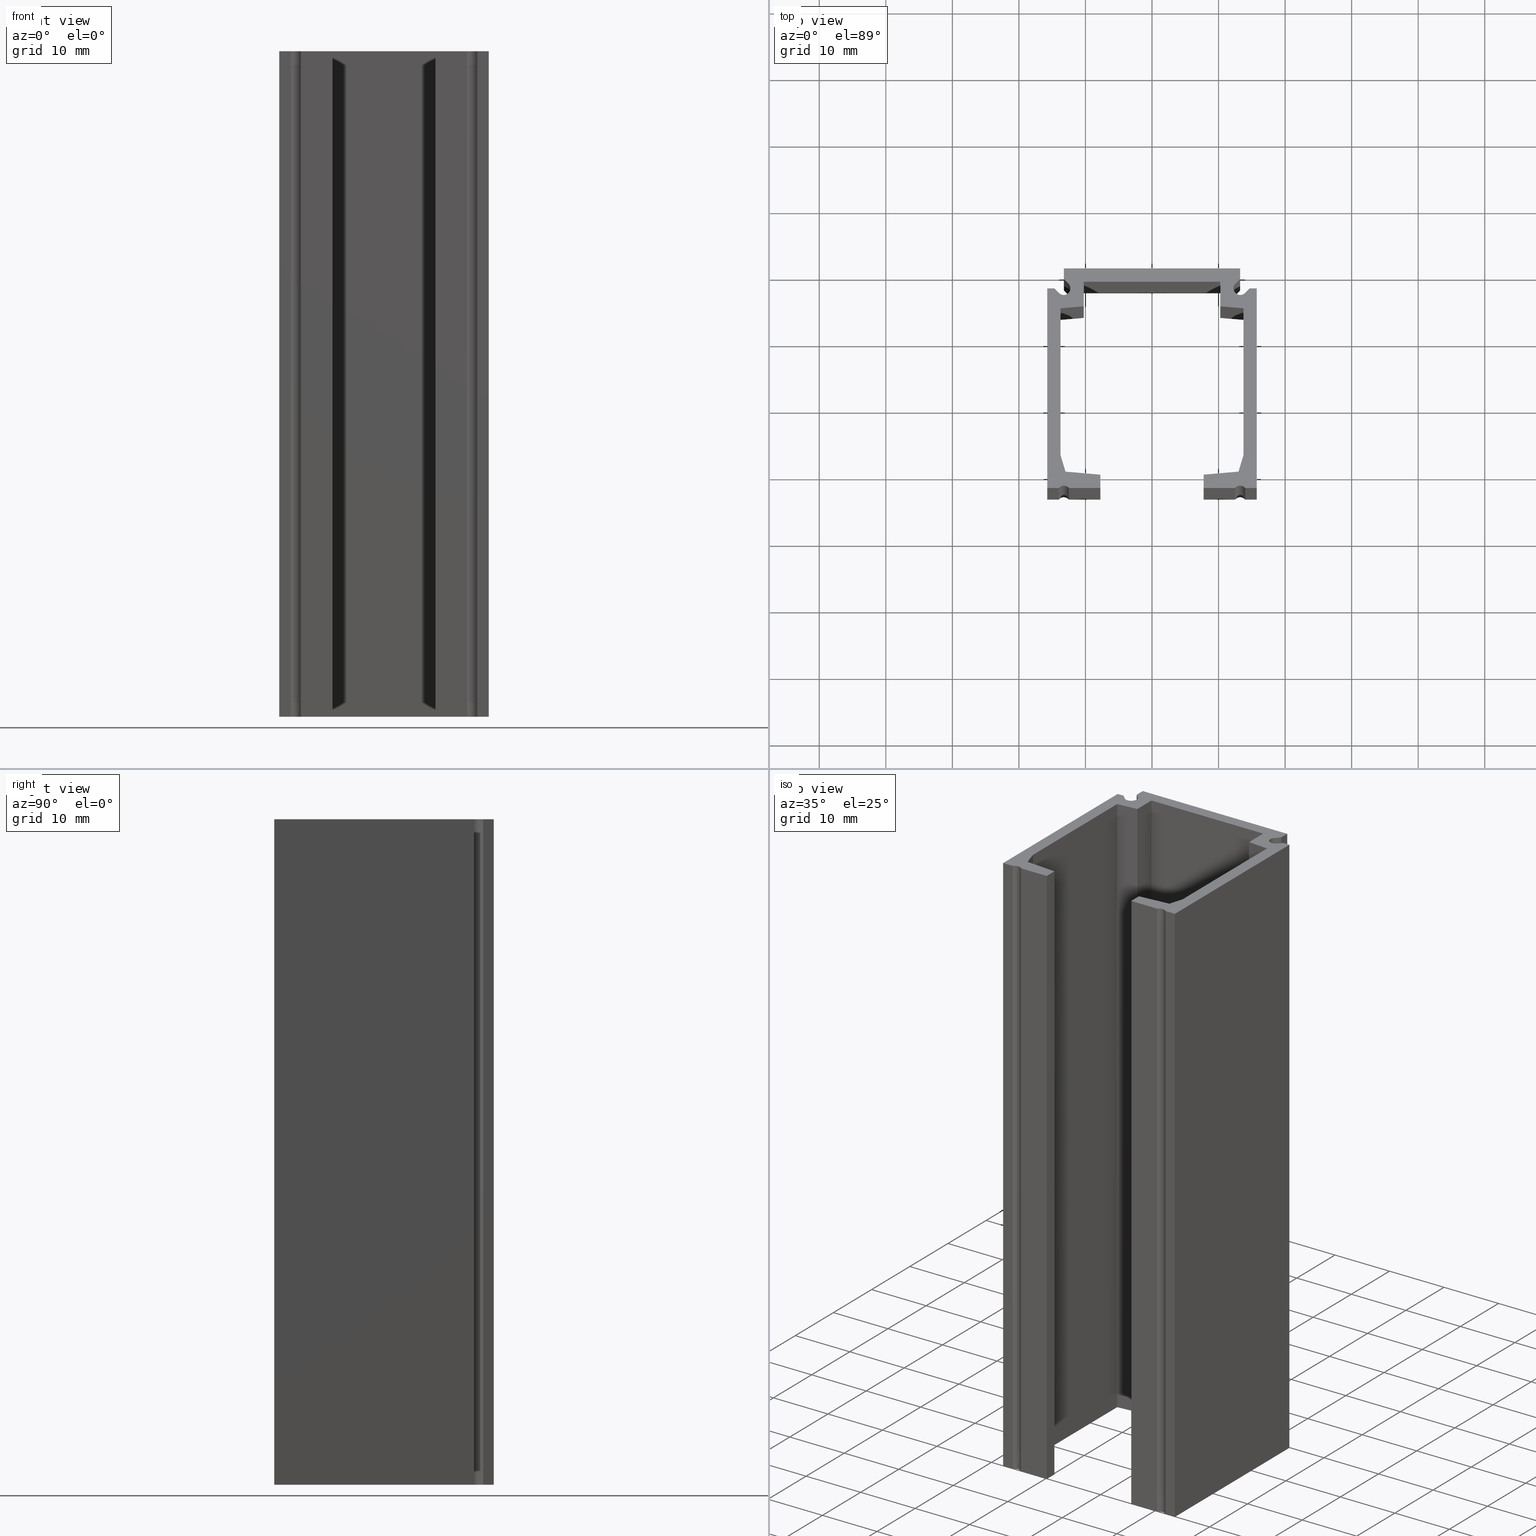
[diagram: canonical four-view strip — front | top / right | iso, engineering-drawing reading convention]
A machine part, canonical four-view strip (front | top / right | iso — engineering-drawing reading convention). The complete STEP part file that produces these views, byte-faithful:
ISO-10303-21;
HEADER;
/* Generated by software containing ST-Developer
 * from STEP Tools, Inc. (www.steptools.com) 
 */

FILE_DESCRIPTION(
/* description */ ('PROFILO X PROTEZIONI '),
/* implementation_level */ '2;1');

FILE_NAME(
/* name */ 'C:\\Users\\Tecnico5\\Desktop\\BPRGD0000002.stp',
/* time_stamp */ '2022-08-30T16:04:37+02:00',
/* author */ ('tecnico5'),
/* organization */ (''),
/* preprocessor_version */ 'ST-DEVELOPER v18.1',
/* originating_system */ 'Autodesk Inventor 2022',
/* authorisation */ '');

FILE_SCHEMA (('AUTOMOTIVE_DESIGN { 1 0 10303 214 3 1 1 }'));
ENDSEC;

DATA;
#10=MECHANICAL_DESIGN_GEOMETRIC_PRESENTATION_REPRESENTATION('',(#13),#1124);
#11=SHAPE_REPRESENTATION_RELATIONSHIP('SRR','None',#1131,#12);
#12=ADVANCED_BREP_SHAPE_REPRESENTATION('',(#14),#1123);
#13=STYLED_ITEM('',(#1140),#14);
#14=MANIFOLD_SOLID_BREP('Solido3',#687);
#15=PLANE('',#716);
#16=PLANE('',#717);
#17=PLANE('',#718);
#18=PLANE('',#721);
#19=PLANE('',#722);
#20=PLANE('',#723);
#21=PLANE('',#724);
#22=PLANE('',#725);
#23=PLANE('',#726);
#24=PLANE('',#727);
#25=PLANE('',#728);
#26=PLANE('',#729);
#27=PLANE('',#730);
#28=PLANE('',#731);
#29=PLANE('',#732);
#30=PLANE('',#733);
#31=PLANE('',#734);
#32=PLANE('',#735);
#33=PLANE('',#736);
#34=PLANE('',#737);
#35=PLANE('',#740);
#36=PLANE('',#741);
#37=PLANE('',#742);
#38=PLANE('',#743);
#39=PLANE('',#744);
#40=PLANE('',#747);
#41=PLANE('',#748);
#42=PLANE('',#749);
#43=PLANE('',#750);
#44=PLANE('',#751);
#45=FACE_OUTER_BOUND('',#79,.T.);
#46=FACE_OUTER_BOUND('',#80,.T.);
#47=FACE_OUTER_BOUND('',#81,.T.);
#48=FACE_OUTER_BOUND('',#82,.T.);
#49=FACE_OUTER_BOUND('',#83,.T.);
#50=FACE_OUTER_BOUND('',#84,.T.);
#51=FACE_OUTER_BOUND('',#85,.T.);
#52=FACE_OUTER_BOUND('',#86,.T.);
#53=FACE_OUTER_BOUND('',#87,.T.);
#54=FACE_OUTER_BOUND('',#88,.T.);
#55=FACE_OUTER_BOUND('',#89,.T.);
#56=FACE_OUTER_BOUND('',#90,.T.);
#57=FACE_OUTER_BOUND('',#91,.T.);
#58=FACE_OUTER_BOUND('',#92,.T.);
#59=FACE_OUTER_BOUND('',#93,.T.);
#60=FACE_OUTER_BOUND('',#94,.T.);
#61=FACE_OUTER_BOUND('',#95,.T.);
#62=FACE_OUTER_BOUND('',#96,.T.);
#63=FACE_OUTER_BOUND('',#97,.T.);
#64=FACE_OUTER_BOUND('',#98,.T.);
#65=FACE_OUTER_BOUND('',#99,.T.);
#66=FACE_OUTER_BOUND('',#100,.T.);
#67=FACE_OUTER_BOUND('',#101,.T.);
#68=FACE_OUTER_BOUND('',#102,.T.);
#69=FACE_OUTER_BOUND('',#103,.T.);
#70=FACE_OUTER_BOUND('',#104,.T.);
#71=FACE_OUTER_BOUND('',#105,.T.);
#72=FACE_OUTER_BOUND('',#106,.T.);
#73=FACE_OUTER_BOUND('',#107,.T.);
#74=FACE_OUTER_BOUND('',#108,.T.);
#75=FACE_OUTER_BOUND('',#109,.T.);
#76=FACE_OUTER_BOUND('',#110,.T.);
#77=FACE_OUTER_BOUND('',#111,.T.);
#78=FACE_OUTER_BOUND('',#112,.T.);
#79=EDGE_LOOP('',(#457,#458,#459,#460));
#80=EDGE_LOOP('',(#461,#462,#463,#464));
#81=EDGE_LOOP('',(#465,#466,#467,#468));
#82=EDGE_LOOP('',(#469,#470,#471,#472));
#83=EDGE_LOOP('',(#473,#474,#475,#476,#477,#478,#479,#480,#481,#482,#483,
#484,#485,#486,#487,#488,#489,#490,#491,#492,#493,#494,#495,#496,#497,#498,
#499,#500,#501,#502,#503,#504));
#84=EDGE_LOOP('',(#505,#506,#507,#508));
#85=EDGE_LOOP('',(#509,#510,#511,#512));
#86=EDGE_LOOP('',(#513,#514,#515,#516));
#87=EDGE_LOOP('',(#517,#518,#519,#520));
#88=EDGE_LOOP('',(#521,#522,#523,#524));
#89=EDGE_LOOP('',(#525,#526,#527,#528));
#90=EDGE_LOOP('',(#529,#530,#531,#532));
#91=EDGE_LOOP('',(#533,#534,#535,#536));
#92=EDGE_LOOP('',(#537,#538,#539,#540));
#93=EDGE_LOOP('',(#541,#542,#543,#544));
#94=EDGE_LOOP('',(#545,#546,#547,#548));
#95=EDGE_LOOP('',(#549,#550,#551,#552));
#96=EDGE_LOOP('',(#553,#554,#555,#556));
#97=EDGE_LOOP('',(#557,#558,#559,#560));
#98=EDGE_LOOP('',(#561,#562,#563,#564));
#99=EDGE_LOOP('',(#565,#566,#567,#568));
#100=EDGE_LOOP('',(#569,#570,#571,#572));
#101=EDGE_LOOP('',(#573,#574,#575,#576));
#102=EDGE_LOOP('',(#577,#578,#579,#580));
#103=EDGE_LOOP('',(#581,#582,#583,#584));
#104=EDGE_LOOP('',(#585,#586,#587,#588));
#105=EDGE_LOOP('',(#589,#590,#591,#592));
#106=EDGE_LOOP('',(#593,#594,#595,#596));
#107=EDGE_LOOP('',(#597,#598,#599,#600));
#108=EDGE_LOOP('',(#601,#602,#603,#604));
#109=EDGE_LOOP('',(#605,#606,#607,#608));
#110=EDGE_LOOP('',(#609,#610,#611,#612));
#111=EDGE_LOOP('',(#613,#614,#615,#616));
#112=EDGE_LOOP('',(#617,#618,#619,#620,#621,#622,#623,#624,#625,#626,#627,
#628,#629,#630,#631,#632,#633,#634,#635,#636,#637,#638,#639,#640,#641,#642,
#643,#644,#645,#646,#647,#648));
#113=LINE('',#932,#201);
#114=LINE('',#935,#202);
#115=LINE('',#941,#203);
#116=LINE('',#944,#204);
#117=LINE('',#947,#205);
#118=LINE('',#949,#206);
#119=LINE('',#950,#207);
#120=LINE('',#953,#208);
#121=LINE('',#955,#209);
#122=LINE('',#956,#210);
#123=LINE('',#959,#211);
#124=LINE('',#961,#212);
#125=LINE('',#963,#213);
#126=LINE('',#965,#214);
#127=LINE('',#967,#215);
#128=LINE('',#969,#216);
#129=LINE('',#971,#217);
#130=LINE('',#973,#218);
#131=LINE('',#975,#219);
#132=LINE('',#977,#220);
#133=LINE('',#979,#221);
#134=LINE('',#981,#222);
#135=LINE('',#983,#223);
#136=LINE('',#984,#224);
#137=LINE('',#986,#225);
#138=LINE('',#988,#226);
#139=LINE('',#990,#227);
#140=LINE('',#992,#228);
#141=LINE('',#996,#229);
#142=LINE('',#998,#230);
#143=LINE('',#1000,#231);
#144=LINE('',#1002,#232);
#145=LINE('',#1004,#233);
#146=LINE('',#1008,#234);
#147=LINE('',#1010,#235);
#148=LINE('',#1011,#236);
#149=LINE('',#1014,#237);
#150=LINE('',#1015,#238);
#151=LINE('',#1018,#239);
#152=LINE('',#1019,#240);
#153=LINE('',#1023,#241);
#154=LINE('',#1024,#242);
#155=LINE('',#1025,#243);
#156=LINE('',#1028,#244);
#157=LINE('',#1029,#245);
#158=LINE('',#1032,#246);
#159=LINE('',#1033,#247);
#160=LINE('',#1036,#248);
#161=LINE('',#1037,#249);
#162=LINE('',#1040,#250);
#163=LINE('',#1041,#251);
#164=LINE('',#1044,#252);
#165=LINE('',#1045,#253);
#166=LINE('',#1048,#254);
#167=LINE('',#1049,#255);
#168=LINE('',#1052,#256);
#169=LINE('',#1053,#257);
#170=LINE('',#1056,#258);
#171=LINE('',#1057,#259);
#172=LINE('',#1060,#260);
#173=LINE('',#1061,#261);
#174=LINE('',#1064,#262);
#175=LINE('',#1065,#263);
#176=LINE('',#1067,#264);
#177=LINE('',#1070,#265);
#178=LINE('',#1071,#266);
#179=LINE('',#1074,#267);
#180=LINE('',#1075,#268);
#181=LINE('',#1078,#269);
#182=LINE('',#1079,#270);
#183=LINE('',#1083,#271);
#184=LINE('',#1086,#272);
#185=LINE('',#1087,#273);
#186=LINE('',#1090,#274);
#187=LINE('',#1091,#275);
#188=LINE('',#1094,#276);
#189=LINE('',#1095,#277);
#190=LINE('',#1098,#278);
#191=LINE('',#1099,#279);
#192=LINE('',#1102,#280);
#193=LINE('',#1103,#281);
#194=LINE('',#1107,#282);
#195=LINE('',#1110,#283);
#196=LINE('',#1111,#284);
#197=LINE('',#1114,#285);
#198=LINE('',#1115,#286);
#199=LINE('',#1117,#287);
#200=LINE('',#1119,#288);
#201=VECTOR('',#758,10.);
#202=VECTOR('',#761,10.);
#203=VECTOR('',#766,10.);
#204=VECTOR('',#769,10.);
#205=VECTOR('',#772,10.);
#206=VECTOR('',#773,10.);
#207=VECTOR('',#774,10.);
#208=VECTOR('',#777,10.);
#209=VECTOR('',#778,10.);
#210=VECTOR('',#779,10.);
#211=VECTOR('',#782,10.);
#212=VECTOR('',#783,10.);
#213=VECTOR('',#784,10.);
#214=VECTOR('',#785,10.);
#215=VECTOR('',#786,10.);
#216=VECTOR('',#787,10.);
#217=VECTOR('',#788,10.);
#218=VECTOR('',#789,10.);
#219=VECTOR('',#790,10.);
#220=VECTOR('',#791,10.);
#221=VECTOR('',#792,10.);
#222=VECTOR('',#793,10.);
#223=VECTOR('',#794,10.);
#224=VECTOR('',#795,10.);
#225=VECTOR('',#796,10.);
#226=VECTOR('',#797,10.);
#227=VECTOR('',#798,10.);
#228=VECTOR('',#799,10.);
#229=VECTOR('',#802,10.);
#230=VECTOR('',#803,10.);
#231=VECTOR('',#804,10.);
#232=VECTOR('',#805,10.);
#233=VECTOR('',#806,10.);
#234=VECTOR('',#809,10.);
#235=VECTOR('',#810,10.);
#236=VECTOR('',#811,10.);
#237=VECTOR('',#814,10.);
#238=VECTOR('',#815,10.);
#239=VECTOR('',#818,10.);
#240=VECTOR('',#819,10.);
#241=VECTOR('',#822,10.);
#242=VECTOR('',#823,10.);
#243=VECTOR('',#824,10.);
#244=VECTOR('',#827,10.);
#245=VECTOR('',#828,10.);
#246=VECTOR('',#831,10.);
#247=VECTOR('',#832,10.);
#248=VECTOR('',#835,10.);
#249=VECTOR('',#836,10.);
#250=VECTOR('',#839,10.);
#251=VECTOR('',#840,10.);
#252=VECTOR('',#843,10.);
#253=VECTOR('',#844,10.);
#254=VECTOR('',#847,10.);
#255=VECTOR('',#848,10.);
#256=VECTOR('',#851,10.);
#257=VECTOR('',#852,10.);
#258=VECTOR('',#855,10.);
#259=VECTOR('',#856,10.);
#260=VECTOR('',#859,10.);
#261=VECTOR('',#860,10.);
#262=VECTOR('',#863,10.);
#263=VECTOR('',#864,10.);
#264=VECTOR('',#867,10.);
#265=VECTOR('',#870,10.);
#266=VECTOR('',#871,10.);
#267=VECTOR('',#874,10.);
#268=VECTOR('',#875,10.);
#269=VECTOR('',#878,10.);
#270=VECTOR('',#879,10.);
#271=VECTOR('',#884,10.);
#272=VECTOR('',#887,10.);
#273=VECTOR('',#888,10.);
#274=VECTOR('',#891,10.);
#275=VECTOR('',#892,10.);
#276=VECTOR('',#895,10.);
#277=VECTOR('',#896,10.);
#278=VECTOR('',#899,10.);
#279=VECTOR('',#900,10.);
#280=VECTOR('',#903,10.);
#281=VECTOR('',#904,10.);
#282=VECTOR('',#909,10.);
#283=VECTOR('',#912,10.);
#284=VECTOR('',#913,10.);
#285=VECTOR('',#916,10.);
#286=VECTOR('',#917,10.);
#287=VECTOR('',#920,10.);
#288=VECTOR('',#923,10.);
#289=CIRCLE('',#711,1.);
#290=CIRCLE('',#712,1.);
#291=CIRCLE('',#714,1.);
#292=CIRCLE('',#715,1.);
#293=CIRCLE('',#719,0.999999999999847);
#294=CIRCLE('',#720,0.999999999999847);
#295=CIRCLE('',#739,0.999999999999847);
#296=CIRCLE('',#746,0.999999999999847);
#297=VERTEX_POINT('',#928);
#298=VERTEX_POINT('',#929);
#299=VERTEX_POINT('',#931);
#300=VERTEX_POINT('',#933);
#301=VERTEX_POINT('',#937);
#302=VERTEX_POINT('',#938);
#303=VERTEX_POINT('',#940);
#304=VERTEX_POINT('',#942);
#305=VERTEX_POINT('',#946);
#306=VERTEX_POINT('',#948);
#307=VERTEX_POINT('',#952);
#308=VERTEX_POINT('',#954);
#309=VERTEX_POINT('',#958);
#310=VERTEX_POINT('',#960);
#311=VERTEX_POINT('',#962);
#312=VERTEX_POINT('',#964);
#313=VERTEX_POINT('',#966);
#314=VERTEX_POINT('',#968);
#315=VERTEX_POINT('',#970);
#316=VERTEX_POINT('',#972);
#317=VERTEX_POINT('',#974);
#318=VERTEX_POINT('',#976);
#319=VERTEX_POINT('',#978);
#320=VERTEX_POINT('',#980);
#321=VERTEX_POINT('',#982);
#322=VERTEX_POINT('',#985);
#323=VERTEX_POINT('',#987);
#324=VERTEX_POINT('',#989);
#325=VERTEX_POINT('',#991);
#326=VERTEX_POINT('',#993);
#327=VERTEX_POINT('',#995);
#328=VERTEX_POINT('',#997);
#329=VERTEX_POINT('',#999);
#330=VERTEX_POINT('',#1001);
#331=VERTEX_POINT('',#1003);
#332=VERTEX_POINT('',#1005);
#333=VERTEX_POINT('',#1007);
#334=VERTEX_POINT('',#1009);
#335=VERTEX_POINT('',#1013);
#336=VERTEX_POINT('',#1017);
#337=VERTEX_POINT('',#1021);
#338=VERTEX_POINT('',#1022);
#339=VERTEX_POINT('',#1027);
#340=VERTEX_POINT('',#1031);
#341=VERTEX_POINT('',#1035);
#342=VERTEX_POINT('',#1039);
#343=VERTEX_POINT('',#1043);
#344=VERTEX_POINT('',#1047);
#345=VERTEX_POINT('',#1051);
#346=VERTEX_POINT('',#1055);
#347=VERTEX_POINT('',#1059);
#348=VERTEX_POINT('',#1063);
#349=VERTEX_POINT('',#1069);
#350=VERTEX_POINT('',#1073);
#351=VERTEX_POINT('',#1077);
#352=VERTEX_POINT('',#1081);
#353=VERTEX_POINT('',#1085);
#354=VERTEX_POINT('',#1089);
#355=VERTEX_POINT('',#1093);
#356=VERTEX_POINT('',#1097);
#357=VERTEX_POINT('',#1101);
#358=VERTEX_POINT('',#1105);
#359=VERTEX_POINT('',#1109);
#360=VERTEX_POINT('',#1113);
#361=EDGE_CURVE('',#297,#298,#289,.T.);
#362=EDGE_CURVE('',#299,#297,#113,.T.);
#363=EDGE_CURVE('',#300,#299,#290,.T.);
#364=EDGE_CURVE('',#298,#300,#114,.T.);
#365=EDGE_CURVE('',#301,#302,#291,.T.);
#366=EDGE_CURVE('',#303,#301,#115,.T.);
#367=EDGE_CURVE('',#304,#303,#292,.T.);
#368=EDGE_CURVE('',#302,#304,#116,.T.);
#369=EDGE_CURVE('',#300,#305,#117,.T.);
#370=EDGE_CURVE('',#306,#305,#118,.T.);
#371=EDGE_CURVE('',#298,#306,#119,.T.);
#372=EDGE_CURVE('',#307,#297,#120,.T.);
#373=EDGE_CURVE('',#307,#308,#121,.T.);
#374=EDGE_CURVE('',#308,#299,#122,.T.);
#375=EDGE_CURVE('',#306,#309,#123,.T.);
#376=EDGE_CURVE('',#309,#310,#124,.T.);
#377=EDGE_CURVE('',#310,#311,#125,.T.);
#378=EDGE_CURVE('',#311,#312,#126,.T.);
#379=EDGE_CURVE('',#312,#313,#127,.T.);
#380=EDGE_CURVE('',#313,#314,#128,.T.);
#381=EDGE_CURVE('',#314,#315,#129,.T.);
#382=EDGE_CURVE('',#315,#316,#130,.T.);
#383=EDGE_CURVE('',#316,#317,#131,.T.);
#384=EDGE_CURVE('',#317,#318,#132,.T.);
#385=EDGE_CURVE('',#318,#319,#133,.T.);
#386=EDGE_CURVE('',#319,#320,#134,.T.);
#387=EDGE_CURVE('',#320,#321,#135,.T.);
#388=EDGE_CURVE('',#321,#301,#136,.T.);
#389=EDGE_CURVE('',#302,#322,#137,.T.);
#390=EDGE_CURVE('',#322,#323,#138,.T.);
#391=EDGE_CURVE('',#323,#324,#139,.T.);
#392=EDGE_CURVE('',#324,#325,#140,.T.);
#393=EDGE_CURVE('',#325,#326,#293,.T.);
#394=EDGE_CURVE('',#326,#327,#141,.T.);
#395=EDGE_CURVE('',#327,#328,#142,.T.);
#396=EDGE_CURVE('',#328,#329,#143,.T.);
#397=EDGE_CURVE('',#329,#330,#144,.T.);
#398=EDGE_CURVE('',#330,#331,#145,.T.);
#399=EDGE_CURVE('',#331,#332,#294,.T.);
#400=EDGE_CURVE('',#332,#333,#146,.T.);
#401=EDGE_CURVE('',#333,#334,#147,.T.);
#402=EDGE_CURVE('',#334,#307,#148,.T.);
#403=EDGE_CURVE('',#304,#335,#149,.T.);
#404=EDGE_CURVE('',#322,#335,#150,.T.);
#405=EDGE_CURVE('',#321,#336,#151,.T.);
#406=EDGE_CURVE('',#336,#303,#152,.T.);
#407=EDGE_CURVE('',#337,#338,#153,.T.);
#408=EDGE_CURVE('',#310,#338,#154,.T.);
#409=EDGE_CURVE('',#309,#337,#155,.T.);
#410=EDGE_CURVE('',#338,#339,#156,.T.);
#411=EDGE_CURVE('',#311,#339,#157,.T.);
#412=EDGE_CURVE('',#339,#340,#158,.T.);
#413=EDGE_CURVE('',#312,#340,#159,.T.);
#414=EDGE_CURVE('',#340,#341,#160,.T.);
#415=EDGE_CURVE('',#313,#341,#161,.T.);
#416=EDGE_CURVE('',#341,#342,#162,.T.);
#417=EDGE_CURVE('',#314,#342,#163,.T.);
#418=EDGE_CURVE('',#342,#343,#164,.T.);
#419=EDGE_CURVE('',#315,#343,#165,.T.);
#420=EDGE_CURVE('',#343,#344,#166,.T.);
#421=EDGE_CURVE('',#316,#344,#167,.T.);
#422=EDGE_CURVE('',#344,#345,#168,.T.);
#423=EDGE_CURVE('',#317,#345,#169,.T.);
#424=EDGE_CURVE('',#345,#346,#170,.T.);
#425=EDGE_CURVE('',#318,#346,#171,.T.);
#426=EDGE_CURVE('',#346,#347,#172,.T.);
#427=EDGE_CURVE('',#319,#347,#173,.T.);
#428=EDGE_CURVE('',#347,#348,#174,.T.);
#429=EDGE_CURVE('',#320,#348,#175,.T.);
#430=EDGE_CURVE('',#348,#336,#176,.T.);
#431=EDGE_CURVE('',#335,#349,#177,.T.);
#432=EDGE_CURVE('',#323,#349,#178,.T.);
#433=EDGE_CURVE('',#349,#350,#179,.T.);
#434=EDGE_CURVE('',#324,#350,#180,.T.);
#435=EDGE_CURVE('',#350,#351,#181,.T.);
#436=EDGE_CURVE('',#325,#351,#182,.T.);
#437=EDGE_CURVE('',#351,#352,#295,.T.);
#438=EDGE_CURVE('',#326,#352,#183,.T.);
#439=EDGE_CURVE('',#352,#353,#184,.T.);
#440=EDGE_CURVE('',#327,#353,#185,.T.);
#441=EDGE_CURVE('',#353,#354,#186,.T.);
#442=EDGE_CURVE('',#328,#354,#187,.T.);
#443=EDGE_CURVE('',#354,#355,#188,.T.);
#444=EDGE_CURVE('',#329,#355,#189,.T.);
#445=EDGE_CURVE('',#355,#356,#190,.T.);
#446=EDGE_CURVE('',#330,#356,#191,.T.);
#447=EDGE_CURVE('',#356,#357,#192,.T.);
#448=EDGE_CURVE('',#331,#357,#193,.T.);
#449=EDGE_CURVE('',#357,#358,#296,.T.);
#450=EDGE_CURVE('',#332,#358,#194,.T.);
#451=EDGE_CURVE('',#358,#359,#195,.T.);
#452=EDGE_CURVE('',#333,#359,#196,.T.);
#453=EDGE_CURVE('',#359,#360,#197,.T.);
#454=EDGE_CURVE('',#334,#360,#198,.T.);
#455=EDGE_CURVE('',#360,#308,#199,.T.);
#456=EDGE_CURVE('',#305,#337,#200,.T.);
#457=ORIENTED_EDGE('',*,*,#361,.F.);
#458=ORIENTED_EDGE('',*,*,#362,.F.);
#459=ORIENTED_EDGE('',*,*,#363,.F.);
#460=ORIENTED_EDGE('',*,*,#364,.F.);
#461=ORIENTED_EDGE('',*,*,#365,.F.);
#462=ORIENTED_EDGE('',*,*,#366,.F.);
#463=ORIENTED_EDGE('',*,*,#367,.F.);
#464=ORIENTED_EDGE('',*,*,#368,.F.);
#465=ORIENTED_EDGE('',*,*,#364,.T.);
#466=ORIENTED_EDGE('',*,*,#369,.T.);
#467=ORIENTED_EDGE('',*,*,#370,.F.);
#468=ORIENTED_EDGE('',*,*,#371,.F.);
#469=ORIENTED_EDGE('',*,*,#362,.T.);
#470=ORIENTED_EDGE('',*,*,#372,.F.);
#471=ORIENTED_EDGE('',*,*,#373,.T.);
#472=ORIENTED_EDGE('',*,*,#374,.T.);
#473=ORIENTED_EDGE('',*,*,#361,.T.);
#474=ORIENTED_EDGE('',*,*,#371,.T.);
#475=ORIENTED_EDGE('',*,*,#375,.T.);
#476=ORIENTED_EDGE('',*,*,#376,.T.);
#477=ORIENTED_EDGE('',*,*,#377,.T.);
#478=ORIENTED_EDGE('',*,*,#378,.T.);
#479=ORIENTED_EDGE('',*,*,#379,.T.);
#480=ORIENTED_EDGE('',*,*,#380,.T.);
#481=ORIENTED_EDGE('',*,*,#381,.T.);
#482=ORIENTED_EDGE('',*,*,#382,.T.);
#483=ORIENTED_EDGE('',*,*,#383,.T.);
#484=ORIENTED_EDGE('',*,*,#384,.T.);
#485=ORIENTED_EDGE('',*,*,#385,.T.);
#486=ORIENTED_EDGE('',*,*,#386,.T.);
#487=ORIENTED_EDGE('',*,*,#387,.T.);
#488=ORIENTED_EDGE('',*,*,#388,.T.);
#489=ORIENTED_EDGE('',*,*,#365,.T.);
#490=ORIENTED_EDGE('',*,*,#389,.T.);
#491=ORIENTED_EDGE('',*,*,#390,.T.);
#492=ORIENTED_EDGE('',*,*,#391,.T.);
#493=ORIENTED_EDGE('',*,*,#392,.T.);
#494=ORIENTED_EDGE('',*,*,#393,.T.);
#495=ORIENTED_EDGE('',*,*,#394,.T.);
#496=ORIENTED_EDGE('',*,*,#395,.T.);
#497=ORIENTED_EDGE('',*,*,#396,.T.);
#498=ORIENTED_EDGE('',*,*,#397,.T.);
#499=ORIENTED_EDGE('',*,*,#398,.T.);
#500=ORIENTED_EDGE('',*,*,#399,.T.);
#501=ORIENTED_EDGE('',*,*,#400,.T.);
#502=ORIENTED_EDGE('',*,*,#401,.T.);
#503=ORIENTED_EDGE('',*,*,#402,.T.);
#504=ORIENTED_EDGE('',*,*,#372,.T.);
#505=ORIENTED_EDGE('',*,*,#368,.T.);
#506=ORIENTED_EDGE('',*,*,#403,.T.);
#507=ORIENTED_EDGE('',*,*,#404,.F.);
#508=ORIENTED_EDGE('',*,*,#389,.F.);
#509=ORIENTED_EDGE('',*,*,#366,.T.);
#510=ORIENTED_EDGE('',*,*,#388,.F.);
#511=ORIENTED_EDGE('',*,*,#405,.T.);
#512=ORIENTED_EDGE('',*,*,#406,.T.);
#513=ORIENTED_EDGE('',*,*,#407,.T.);
#514=ORIENTED_EDGE('',*,*,#408,.F.);
#515=ORIENTED_EDGE('',*,*,#376,.F.);
#516=ORIENTED_EDGE('',*,*,#409,.T.);
#517=ORIENTED_EDGE('',*,*,#410,.T.);
#518=ORIENTED_EDGE('',*,*,#411,.F.);
#519=ORIENTED_EDGE('',*,*,#377,.F.);
#520=ORIENTED_EDGE('',*,*,#408,.T.);
#521=ORIENTED_EDGE('',*,*,#412,.T.);
#522=ORIENTED_EDGE('',*,*,#413,.F.);
#523=ORIENTED_EDGE('',*,*,#378,.F.);
#524=ORIENTED_EDGE('',*,*,#411,.T.);
#525=ORIENTED_EDGE('',*,*,#414,.T.);
#526=ORIENTED_EDGE('',*,*,#415,.F.);
#527=ORIENTED_EDGE('',*,*,#379,.F.);
#528=ORIENTED_EDGE('',*,*,#413,.T.);
#529=ORIENTED_EDGE('',*,*,#416,.T.);
#530=ORIENTED_EDGE('',*,*,#417,.F.);
#531=ORIENTED_EDGE('',*,*,#380,.F.);
#532=ORIENTED_EDGE('',*,*,#415,.T.);
#533=ORIENTED_EDGE('',*,*,#418,.T.);
#534=ORIENTED_EDGE('',*,*,#419,.F.);
#535=ORIENTED_EDGE('',*,*,#381,.F.);
#536=ORIENTED_EDGE('',*,*,#417,.T.);
#537=ORIENTED_EDGE('',*,*,#420,.T.);
#538=ORIENTED_EDGE('',*,*,#421,.F.);
#539=ORIENTED_EDGE('',*,*,#382,.F.);
#540=ORIENTED_EDGE('',*,*,#419,.T.);
#541=ORIENTED_EDGE('',*,*,#422,.T.);
#542=ORIENTED_EDGE('',*,*,#423,.F.);
#543=ORIENTED_EDGE('',*,*,#383,.F.);
#544=ORIENTED_EDGE('',*,*,#421,.T.);
#545=ORIENTED_EDGE('',*,*,#424,.T.);
#546=ORIENTED_EDGE('',*,*,#425,.F.);
#547=ORIENTED_EDGE('',*,*,#384,.F.);
#548=ORIENTED_EDGE('',*,*,#423,.T.);
#549=ORIENTED_EDGE('',*,*,#426,.T.);
#550=ORIENTED_EDGE('',*,*,#427,.F.);
#551=ORIENTED_EDGE('',*,*,#385,.F.);
#552=ORIENTED_EDGE('',*,*,#425,.T.);
#553=ORIENTED_EDGE('',*,*,#428,.T.);
#554=ORIENTED_EDGE('',*,*,#429,.F.);
#555=ORIENTED_EDGE('',*,*,#386,.F.);
#556=ORIENTED_EDGE('',*,*,#427,.T.);
#557=ORIENTED_EDGE('',*,*,#430,.T.);
#558=ORIENTED_EDGE('',*,*,#405,.F.);
#559=ORIENTED_EDGE('',*,*,#387,.F.);
#560=ORIENTED_EDGE('',*,*,#429,.T.);
#561=ORIENTED_EDGE('',*,*,#431,.T.);
#562=ORIENTED_EDGE('',*,*,#432,.F.);
#563=ORIENTED_EDGE('',*,*,#390,.F.);
#564=ORIENTED_EDGE('',*,*,#404,.T.);
#565=ORIENTED_EDGE('',*,*,#433,.T.);
#566=ORIENTED_EDGE('',*,*,#434,.F.);
#567=ORIENTED_EDGE('',*,*,#391,.F.);
#568=ORIENTED_EDGE('',*,*,#432,.T.);
#569=ORIENTED_EDGE('',*,*,#435,.T.);
#570=ORIENTED_EDGE('',*,*,#436,.F.);
#571=ORIENTED_EDGE('',*,*,#392,.F.);
#572=ORIENTED_EDGE('',*,*,#434,.T.);
#573=ORIENTED_EDGE('',*,*,#437,.T.);
#574=ORIENTED_EDGE('',*,*,#438,.F.);
#575=ORIENTED_EDGE('',*,*,#393,.F.);
#576=ORIENTED_EDGE('',*,*,#436,.T.);
#577=ORIENTED_EDGE('',*,*,#439,.T.);
#578=ORIENTED_EDGE('',*,*,#440,.F.);
#579=ORIENTED_EDGE('',*,*,#394,.F.);
#580=ORIENTED_EDGE('',*,*,#438,.T.);
#581=ORIENTED_EDGE('',*,*,#441,.T.);
#582=ORIENTED_EDGE('',*,*,#442,.F.);
#583=ORIENTED_EDGE('',*,*,#395,.F.);
#584=ORIENTED_EDGE('',*,*,#440,.T.);
#585=ORIENTED_EDGE('',*,*,#443,.T.);
#586=ORIENTED_EDGE('',*,*,#444,.F.);
#587=ORIENTED_EDGE('',*,*,#396,.F.);
#588=ORIENTED_EDGE('',*,*,#442,.T.);
#589=ORIENTED_EDGE('',*,*,#445,.T.);
#590=ORIENTED_EDGE('',*,*,#446,.F.);
#591=ORIENTED_EDGE('',*,*,#397,.F.);
#592=ORIENTED_EDGE('',*,*,#444,.T.);
#593=ORIENTED_EDGE('',*,*,#447,.T.);
#594=ORIENTED_EDGE('',*,*,#448,.F.);
#595=ORIENTED_EDGE('',*,*,#398,.F.);
#596=ORIENTED_EDGE('',*,*,#446,.T.);
#597=ORIENTED_EDGE('',*,*,#449,.T.);
#598=ORIENTED_EDGE('',*,*,#450,.F.);
#599=ORIENTED_EDGE('',*,*,#399,.F.);
#600=ORIENTED_EDGE('',*,*,#448,.T.);
#601=ORIENTED_EDGE('',*,*,#451,.T.);
#602=ORIENTED_EDGE('',*,*,#452,.F.);
#603=ORIENTED_EDGE('',*,*,#400,.F.);
#604=ORIENTED_EDGE('',*,*,#450,.T.);
#605=ORIENTED_EDGE('',*,*,#453,.T.);
#606=ORIENTED_EDGE('',*,*,#454,.F.);
#607=ORIENTED_EDGE('',*,*,#401,.F.);
#608=ORIENTED_EDGE('',*,*,#452,.T.);
#609=ORIENTED_EDGE('',*,*,#455,.T.);
#610=ORIENTED_EDGE('',*,*,#373,.F.);
#611=ORIENTED_EDGE('',*,*,#402,.F.);
#612=ORIENTED_EDGE('',*,*,#454,.T.);
#613=ORIENTED_EDGE('',*,*,#456,.T.);
#614=ORIENTED_EDGE('',*,*,#409,.F.);
#615=ORIENTED_EDGE('',*,*,#375,.F.);
#616=ORIENTED_EDGE('',*,*,#370,.T.);
#617=ORIENTED_EDGE('',*,*,#363,.T.);
#618=ORIENTED_EDGE('',*,*,#374,.F.);
#619=ORIENTED_EDGE('',*,*,#455,.F.);
#620=ORIENTED_EDGE('',*,*,#453,.F.);
#621=ORIENTED_EDGE('',*,*,#451,.F.);
#622=ORIENTED_EDGE('',*,*,#449,.F.);
#623=ORIENTED_EDGE('',*,*,#447,.F.);
#624=ORIENTED_EDGE('',*,*,#445,.F.);
#625=ORIENTED_EDGE('',*,*,#443,.F.);
#626=ORIENTED_EDGE('',*,*,#441,.F.);
#627=ORIENTED_EDGE('',*,*,#439,.F.);
#628=ORIENTED_EDGE('',*,*,#437,.F.);
#629=ORIENTED_EDGE('',*,*,#435,.F.);
#630=ORIENTED_EDGE('',*,*,#433,.F.);
#631=ORIENTED_EDGE('',*,*,#431,.F.);
#632=ORIENTED_EDGE('',*,*,#403,.F.);
#633=ORIENTED_EDGE('',*,*,#367,.T.);
#634=ORIENTED_EDGE('',*,*,#406,.F.);
#635=ORIENTED_EDGE('',*,*,#430,.F.);
#636=ORIENTED_EDGE('',*,*,#428,.F.);
#637=ORIENTED_EDGE('',*,*,#426,.F.);
#638=ORIENTED_EDGE('',*,*,#424,.F.);
#639=ORIENTED_EDGE('',*,*,#422,.F.);
#640=ORIENTED_EDGE('',*,*,#420,.F.);
#641=ORIENTED_EDGE('',*,*,#418,.F.);
#642=ORIENTED_EDGE('',*,*,#416,.F.);
#643=ORIENTED_EDGE('',*,*,#414,.F.);
#644=ORIENTED_EDGE('',*,*,#412,.F.);
#645=ORIENTED_EDGE('',*,*,#410,.F.);
#646=ORIENTED_EDGE('',*,*,#407,.F.);
#647=ORIENTED_EDGE('',*,*,#456,.F.);
#648=ORIENTED_EDGE('',*,*,#369,.F.);
#649=CYLINDRICAL_SURFACE('',#710,1.);
#650=CYLINDRICAL_SURFACE('',#713,1.);
#651=CYLINDRICAL_SURFACE('',#738,0.999999999999847);
#652=CYLINDRICAL_SURFACE('',#745,0.999999999999847);
#653=ADVANCED_FACE('',(#45),#649,.F.);
#654=ADVANCED_FACE('',(#46),#650,.F.);
#655=ADVANCED_FACE('',(#47),#15,.T.);
#656=ADVANCED_FACE('',(#48),#16,.T.);
#657=ADVANCED_FACE('',(#49),#17,.F.);
#658=ADVANCED_FACE('',(#50),#18,.T.);
#659=ADVANCED_FACE('',(#51),#19,.T.);
#660=ADVANCED_FACE('',(#52),#20,.T.);
#661=ADVANCED_FACE('',(#53),#21,.T.);
#662=ADVANCED_FACE('',(#54),#22,.T.);
#663=ADVANCED_FACE('',(#55),#23,.T.);
#664=ADVANCED_FACE('',(#56),#24,.T.);
#665=ADVANCED_FACE('',(#57),#25,.T.);
#666=ADVANCED_FACE('',(#58),#26,.T.);
#667=ADVANCED_FACE('',(#59),#27,.T.);
#668=ADVANCED_FACE('',(#60),#28,.T.);
#669=ADVANCED_FACE('',(#61),#29,.T.);
#670=ADVANCED_FACE('',(#62),#30,.T.);
#671=ADVANCED_FACE('',(#63),#31,.T.);
#672=ADVANCED_FACE('',(#64),#32,.T.);
#673=ADVANCED_FACE('',(#65),#33,.T.);
#674=ADVANCED_FACE('',(#66),#34,.T.);
#675=ADVANCED_FACE('',(#67),#651,.F.);
#676=ADVANCED_FACE('',(#68),#35,.T.);
#677=ADVANCED_FACE('',(#69),#36,.T.);
#678=ADVANCED_FACE('',(#70),#37,.T.);
#679=ADVANCED_FACE('',(#71),#38,.T.);
#680=ADVANCED_FACE('',(#72),#39,.T.);
#681=ADVANCED_FACE('',(#73),#652,.F.);
#682=ADVANCED_FACE('',(#74),#40,.T.);
#683=ADVANCED_FACE('',(#75),#41,.T.);
#684=ADVANCED_FACE('',(#76),#42,.T.);
#685=ADVANCED_FACE('',(#77),#43,.T.);
#686=ADVANCED_FACE('',(#78),#44,.T.);
#687=CLOSED_SHELL('',(#653,#654,#655,#656,#657,#658,#659,#660,#661,#662,
#663,#664,#665,#666,#667,#668,#669,#670,#671,#672,#673,#674,#675,#676,#677,
#678,#679,#680,#681,#682,#683,#684,#685,#686));
#688=DERIVED_UNIT_ELEMENT(#691,1.);
#689=DERIVED_UNIT_ELEMENT(#1126,-3.);
#690=DIMENSIONAL_EXPONENTS(1.,0.,0.,0.,0.,0.,0.);
#691=(
CONVERSION_BASED_UNIT('gram',#693)
MASS_UNIT()
NAMED_UNIT(#690)
);
#692=(
MASS_UNIT()
NAMED_UNIT(*)
SI_UNIT(.KILO.,.GRAM.)
);
#693=MASS_MEASURE_WITH_UNIT(MASS_MEASURE(0.001),#692);
#694=DERIVED_UNIT((#688,#689));
#695=MEASURE_REPRESENTATION_ITEM('density measure',
POSITIVE_RATIO_MEASURE(2.7),#694);
#696=PROPERTY_DEFINITION_REPRESENTATION(#701,#698);
#697=PROPERTY_DEFINITION_REPRESENTATION(#702,#699);
#698=REPRESENTATION('material name',(#700),#1123);
#699=REPRESENTATION('density',(#695),#1123);
#700=DESCRIPTIVE_REPRESENTATION_ITEM('Alluminio 6060','Alluminio 6060');
#701=PROPERTY_DEFINITION('material property','material name',#1133);
#702=PROPERTY_DEFINITION('material property','density of part',#1133);
#703=DATE_TIME_ROLE('creation_date');
#704=APPLIED_DATE_AND_TIME_ASSIGNMENT(#705,#703,(#1133));
#705=DATE_AND_TIME(#706,#707);
#706=CALENDAR_DATE(2016,1,2);
#707=LOCAL_TIME(0,0,0.,#708);
#708=COORDINATED_UNIVERSAL_TIME_OFFSET(0,0,.BEHIND.);
#709=AXIS2_PLACEMENT_3D('placement',#926,#752,#753);
#710=AXIS2_PLACEMENT_3D('',#927,#754,#755);
#711=AXIS2_PLACEMENT_3D('',#930,#756,#757);
#712=AXIS2_PLACEMENT_3D('',#934,#759,#760);
#713=AXIS2_PLACEMENT_3D('',#936,#762,#763);
#714=AXIS2_PLACEMENT_3D('',#939,#764,#765);
#715=AXIS2_PLACEMENT_3D('',#943,#767,#768);
#716=AXIS2_PLACEMENT_3D('',#945,#770,#771);
#717=AXIS2_PLACEMENT_3D('',#951,#775,#776);
#718=AXIS2_PLACEMENT_3D('',#957,#780,#781);
#719=AXIS2_PLACEMENT_3D('',#994,#800,#801);
#720=AXIS2_PLACEMENT_3D('',#1006,#807,#808);
#721=AXIS2_PLACEMENT_3D('',#1012,#812,#813);
#722=AXIS2_PLACEMENT_3D('',#1016,#816,#817);
#723=AXIS2_PLACEMENT_3D('',#1020,#820,#821);
#724=AXIS2_PLACEMENT_3D('',#1026,#825,#826);
#725=AXIS2_PLACEMENT_3D('',#1030,#829,#830);
#726=AXIS2_PLACEMENT_3D('',#1034,#833,#834);
#727=AXIS2_PLACEMENT_3D('',#1038,#837,#838);
#728=AXIS2_PLACEMENT_3D('',#1042,#841,#842);
#729=AXIS2_PLACEMENT_3D('',#1046,#845,#846);
#730=AXIS2_PLACEMENT_3D('',#1050,#849,#850);
#731=AXIS2_PLACEMENT_3D('',#1054,#853,#854);
#732=AXIS2_PLACEMENT_3D('',#1058,#857,#858);
#733=AXIS2_PLACEMENT_3D('',#1062,#861,#862);
#734=AXIS2_PLACEMENT_3D('',#1066,#865,#866);
#735=AXIS2_PLACEMENT_3D('',#1068,#868,#869);
#736=AXIS2_PLACEMENT_3D('',#1072,#872,#873);
#737=AXIS2_PLACEMENT_3D('',#1076,#876,#877);
#738=AXIS2_PLACEMENT_3D('',#1080,#880,#881);
#739=AXIS2_PLACEMENT_3D('',#1082,#882,#883);
#740=AXIS2_PLACEMENT_3D('',#1084,#885,#886);
#741=AXIS2_PLACEMENT_3D('',#1088,#889,#890);
#742=AXIS2_PLACEMENT_3D('',#1092,#893,#894);
#743=AXIS2_PLACEMENT_3D('',#1096,#897,#898);
#744=AXIS2_PLACEMENT_3D('',#1100,#901,#902);
#745=AXIS2_PLACEMENT_3D('',#1104,#905,#906);
#746=AXIS2_PLACEMENT_3D('',#1106,#907,#908);
#747=AXIS2_PLACEMENT_3D('',#1108,#910,#911);
#748=AXIS2_PLACEMENT_3D('',#1112,#914,#915);
#749=AXIS2_PLACEMENT_3D('',#1116,#918,#919);
#750=AXIS2_PLACEMENT_3D('',#1118,#921,#922);
#751=AXIS2_PLACEMENT_3D('',#1120,#924,#925);
#752=DIRECTION('axis',(0.,0.,1.));
#753=DIRECTION('refdir',(1.,0.,0.));
#754=DIRECTION('center_axis',(0.,0.,-1.));
#755=DIRECTION('ref_axis',(0.75993420767853,0.650000000000004,0.));
#756=DIRECTION('center_axis',(0.,0.,1.));
#757=DIRECTION('ref_axis',(0.75993420767853,0.650000000000004,0.));
#758=DIRECTION('',(0.,0.,-1.));
#759=DIRECTION('center_axis',(0.,0.,-1.));
#760=DIRECTION('ref_axis',(0.75993420767853,0.650000000000004,0.));
#761=DIRECTION('',(0.,0.,1.));
#762=DIRECTION('center_axis',(0.,0.,-1.));
#763=DIRECTION('ref_axis',(0.759934207678529,0.650000000000004,0.));
#764=DIRECTION('center_axis',(0.,0.,1.));
#765=DIRECTION('ref_axis',(0.759934207678529,0.650000000000004,0.));
#766=DIRECTION('',(0.,0.,-1.));
#767=DIRECTION('center_axis',(0.,0.,-1.));
#768=DIRECTION('ref_axis',(0.759934207678529,0.650000000000004,0.));
#769=DIRECTION('',(0.,0.,1.));
#770=DIRECTION('center_axis',(0.,-1.,0.));
#771=DIRECTION('ref_axis',(1.,0.,0.));
#772=DIRECTION('',(-1.,0.,0.));
#773=DIRECTION('',(0.,0.,1.));
#774=DIRECTION('',(-1.,0.,0.));
#775=DIRECTION('center_axis',(0.,-1.,0.));
#776=DIRECTION('ref_axis',(1.,0.,0.));
#777=DIRECTION('',(-1.,0.,0.));
#778=DIRECTION('',(0.,0.,1.));
#779=DIRECTION('',(-1.,0.,0.));
#780=DIRECTION('center_axis',(0.,0.,1.));
#781=DIRECTION('ref_axis',(1.,0.,0.));
#782=DIRECTION('',(0.,1.,0.));
#783=DIRECTION('',(0.996201176100114,0.0870816670531193,0.));
#784=DIRECTION('',(0.287500566133926,0.957780467786158,0.));
#785=DIRECTION('',(1.00749393668963E-16,1.,0.));
#786=DIRECTION('',(-0.996205072587935,0.0870370803167673,0.));
#787=DIRECTION('',(0.,1.,0.));
#788=DIRECTION('',(-1.,0.,0.));
#789=DIRECTION('',(0.,-1.,0.));
#790=DIRECTION('',(-0.996201176100114,-0.0870816670531194,0.));
#791=DIRECTION('',(0.,-1.,0.));
#792=DIRECTION('',(0.287500566133867,-0.957780467786176,0.));
#793=DIRECTION('',(0.996205072587935,-0.0870370803167672,0.));
#794=DIRECTION('',(0.,-1.,0.));
#795=DIRECTION('',(-1.,0.,0.));
#796=DIRECTION('',(-1.,0.,0.));
#797=DIRECTION('',(2.31222530375993E-13,1.,0.));
#798=DIRECTION('',(1.,0.,0.));
#799=DIRECTION('',(0.707106781186719,-0.707106781186376,0.));
#800=DIRECTION('center_axis',(0.,0.,1.));
#801=DIRECTION('ref_axis',(0.707106781186545,0.70710678118655,0.));
#802=DIRECTION('',(-0.707106781186547,0.707106781186548,0.));
#803=DIRECTION('',(0.,1.,0.));
#804=DIRECTION('',(1.,1.83697019872103E-16,0.));
#805=DIRECTION('',(0.,-1.,0.));
#806=DIRECTION('',(-0.706548465789201,-0.707664656098442,0.));
#807=DIRECTION('center_axis',(0.,0.,1.));
#808=DIRECTION('ref_axis',(0.707664656098444,-0.706548465789199,0.));
#809=DIRECTION('',(0.707106781186551,0.707106781186544,0.));
#810=DIRECTION('',(1.,-5.11472190719827E-16,0.));
#811=DIRECTION('',(1.48029851117105E-16,-1.,0.));
#812=DIRECTION('center_axis',(0.,-1.,0.));
#813=DIRECTION('ref_axis',(1.,0.,0.));
#814=DIRECTION('',(-1.,0.,0.));
#815=DIRECTION('',(0.,0.,1.));
#816=DIRECTION('center_axis',(0.,-1.,0.));
#817=DIRECTION('ref_axis',(1.,0.,0.));
#818=DIRECTION('',(0.,0.,1.));
#819=DIRECTION('',(-1.,0.,0.));
#820=DIRECTION('center_axis',(-0.0870816670531193,0.996201176100114,0.));
#821=DIRECTION('ref_axis',(-0.996201176100114,-0.0870816670531193,0.));
#822=DIRECTION('',(0.996201176100114,0.0870816670531193,0.));
#823=DIRECTION('',(0.,0.,1.));
#824=DIRECTION('',(0.,0.,1.));
#825=DIRECTION('center_axis',(-0.957780467786158,0.287500566133926,0.));
#826=DIRECTION('ref_axis',(-0.287500566133926,-0.957780467786158,0.));
#827=DIRECTION('',(0.287500566133926,0.957780467786158,0.));
#828=DIRECTION('',(0.,0.,1.));
#829=DIRECTION('center_axis',(-1.,1.00749393668963E-16,0.));
#830=DIRECTION('ref_axis',(-1.00749393668963E-16,-1.,0.));
#831=DIRECTION('',(1.00749393668963E-16,1.,0.));
#832=DIRECTION('',(0.,0.,1.));
#833=DIRECTION('center_axis',(-0.0870370803167673,-0.996205072587935,0.));
#834=DIRECTION('ref_axis',(0.996205072587935,-0.0870370803167673,0.));
#835=DIRECTION('',(-0.996205072587935,0.0870370803167673,0.));
#836=DIRECTION('',(0.,0.,1.));
#837=DIRECTION('center_axis',(-1.,0.,0.));
#838=DIRECTION('ref_axis',(0.,-1.,0.));
#839=DIRECTION('',(0.,1.,0.));
#840=DIRECTION('',(0.,0.,1.));
#841=DIRECTION('center_axis',(0.,-1.,0.));
#842=DIRECTION('ref_axis',(1.,0.,0.));
#843=DIRECTION('',(-1.,0.,0.));
#844=DIRECTION('',(0.,0.,1.));
#845=DIRECTION('center_axis',(1.,0.,0.));
#846=DIRECTION('ref_axis',(0.,1.,0.));
#847=DIRECTION('',(0.,-1.,0.));
#848=DIRECTION('',(0.,0.,1.));
#849=DIRECTION('center_axis',(0.0870816670531194,-0.996201176100114,0.));
#850=DIRECTION('ref_axis',(0.996201176100114,0.0870816670531194,0.));
#851=DIRECTION('',(-0.996201176100114,-0.0870816670531194,0.));
#852=DIRECTION('',(0.,0.,1.));
#853=DIRECTION('center_axis',(1.,0.,0.));
#854=DIRECTION('ref_axis',(0.,1.,0.));
#855=DIRECTION('',(0.,-1.,0.));
#856=DIRECTION('',(0.,0.,1.));
#857=DIRECTION('center_axis',(0.957780467786176,0.287500566133867,0.));
#858=DIRECTION('ref_axis',(-0.287500566133867,0.957780467786176,0.));
#859=DIRECTION('',(0.287500566133867,-0.957780467786176,0.));
#860=DIRECTION('',(0.,0.,1.));
#861=DIRECTION('center_axis',(0.0870370803167672,0.996205072587935,0.));
#862=DIRECTION('ref_axis',(-0.996205072587935,0.0870370803167672,0.));
#863=DIRECTION('',(0.996205072587935,-0.0870370803167672,0.));
#864=DIRECTION('',(0.,0.,1.));
#865=DIRECTION('center_axis',(1.,0.,0.));
#866=DIRECTION('ref_axis',(0.,1.,0.));
#867=DIRECTION('',(0.,-1.,0.));
#868=DIRECTION('center_axis',(-1.,2.31222530375993E-13,0.));
#869=DIRECTION('ref_axis',(-2.31222530375993E-13,-1.,0.));
#870=DIRECTION('',(2.31222530375993E-13,1.,0.));
#871=DIRECTION('',(0.,0.,1.));
#872=DIRECTION('center_axis',(0.,1.,0.));
#873=DIRECTION('ref_axis',(-1.,0.,0.));
#874=DIRECTION('',(1.,0.,0.));
#875=DIRECTION('',(0.,0.,1.));
#876=DIRECTION('center_axis',(0.707106781186376,0.707106781186719,0.));
#877=DIRECTION('ref_axis',(-0.707106781186719,0.707106781186376,0.));
#878=DIRECTION('',(0.707106781186719,-0.707106781186376,0.));
#879=DIRECTION('',(0.,0.,1.));
#880=DIRECTION('center_axis',(0.,0.,1.));
#881=DIRECTION('ref_axis',(0.707106781186545,0.70710678118655,0.));
#882=DIRECTION('center_axis',(0.,0.,1.));
#883=DIRECTION('ref_axis',(0.707106781186545,0.70710678118655,0.));
#884=DIRECTION('',(0.,0.,1.));
#885=DIRECTION('center_axis',(-0.707106781186549,-0.707106781186547,0.));
#886=DIRECTION('ref_axis',(0.707106781186547,-0.707106781186548,0.));
#887=DIRECTION('',(-0.707106781186547,0.707106781186548,0.));
#888=DIRECTION('',(0.,0.,1.));
#889=DIRECTION('center_axis',(-1.,0.,0.));
#890=DIRECTION('ref_axis',(0.,-1.,0.));
#891=DIRECTION('',(0.,1.,0.));
#892=DIRECTION('',(0.,0.,1.));
#893=DIRECTION('center_axis',(-1.83697019872103E-16,1.,0.));
#894=DIRECTION('ref_axis',(-1.,-1.83697019872103E-16,0.));
#895=DIRECTION('',(1.,1.83697019872103E-16,0.));
#896=DIRECTION('',(0.,0.,1.));
#897=DIRECTION('center_axis',(1.,0.,0.));
#898=DIRECTION('ref_axis',(0.,1.,0.));
#899=DIRECTION('',(0.,-1.,0.));
#900=DIRECTION('',(0.,0.,1.));
#901=DIRECTION('center_axis',(0.707664656098442,-0.706548465789201,0.));
#902=DIRECTION('ref_axis',(0.706548465789201,0.707664656098442,0.));
#903=DIRECTION('',(-0.706548465789201,-0.707664656098442,0.));
#904=DIRECTION('',(0.,0.,1.));
#905=DIRECTION('center_axis',(0.,0.,1.));
#906=DIRECTION('ref_axis',(0.707664656098444,-0.706548465789199,0.));
#907=DIRECTION('center_axis',(0.,0.,1.));
#908=DIRECTION('ref_axis',(0.707664656098444,-0.706548465789199,0.));
#909=DIRECTION('',(0.,0.,1.));
#910=DIRECTION('center_axis',(-0.707106781186544,0.707106781186551,0.));
#911=DIRECTION('ref_axis',(-0.707106781186551,-0.707106781186544,0.));
#912=DIRECTION('',(0.707106781186551,0.707106781186544,0.));
#913=DIRECTION('',(0.,0.,1.));
#914=DIRECTION('center_axis',(5.11472190719827E-16,1.,0.));
#915=DIRECTION('ref_axis',(-1.,5.11472190719827E-16,0.));
#916=DIRECTION('',(1.,-5.11472190719827E-16,0.));
#917=DIRECTION('',(0.,0.,1.));
#918=DIRECTION('center_axis',(1.,1.48029851117105E-16,0.));
#919=DIRECTION('ref_axis',(-1.48029851117105E-16,1.,0.));
#920=DIRECTION('',(1.48029851117105E-16,-1.,0.));
#921=DIRECTION('center_axis',(-1.,0.,0.));
#922=DIRECTION('ref_axis',(0.,-1.,0.));
#923=DIRECTION('',(0.,1.,0.));
#924=DIRECTION('center_axis',(0.,0.,1.));
#925=DIRECTION('ref_axis',(1.,0.,0.));
#926=CARTESIAN_POINT('',(0.,0.,0.));
#927=CARTESIAN_POINT('Origin',(13.2498639199982,-33.6499946946739,100.));
#928=CARTESIAN_POINT('',(14.0095377112171,-32.9996903575093,0.));
#929=CARTESIAN_POINT('',(12.4901901287794,-32.9996903575093,0.));
#930=CARTESIAN_POINT('Origin',(13.2498639199982,-33.6499946946739,0.));
#931=CARTESIAN_POINT('',(14.0095377112171,-32.9996903575093,100.));
#932=CARTESIAN_POINT('',(14.0095377112171,-32.9996903575093,100.));
#933=CARTESIAN_POINT('',(12.4901901287794,-32.9996903575093,100.));
#934=CARTESIAN_POINT('Origin',(13.2498639199982,-33.6499946946739,100.));
#935=CARTESIAN_POINT('',(12.4901901287794,-32.9996903575093,100.));
#936=CARTESIAN_POINT('Origin',(-13.2498639199982,-33.6499946946739,100.));
#937=CARTESIAN_POINT('',(-12.4899297123197,-32.9999946946739,0.));
#938=CARTESIAN_POINT('',(-14.0097981276767,-32.9999946946739,0.));
#939=CARTESIAN_POINT('Origin',(-13.2498639199982,-33.6499946946739,0.));
#940=CARTESIAN_POINT('',(-12.4899297123197,-32.9999946946739,100.));
#941=CARTESIAN_POINT('',(-12.4899297123197,-32.9999946946739,100.));
#942=CARTESIAN_POINT('',(-14.0097981276767,-32.9999946946739,100.));
#943=CARTESIAN_POINT('Origin',(-13.2498639199982,-33.6499946946739,100.));
#944=CARTESIAN_POINT('',(-14.0097981276767,-32.9999946946739,100.));
#945=CARTESIAN_POINT('Origin',(7.75017029936552,-32.9996903575093,0.));
#946=CARTESIAN_POINT('',(7.75017029936552,-32.9996903575093,100.));
#947=CARTESIAN_POINT('',(3.87512772452282,-32.9996903575093,100.));
#948=CARTESIAN_POINT('',(7.75017029936552,-32.9996903575093,0.));
#949=CARTESIAN_POINT('',(7.75017029936552,-32.9996903575093,0.));
#950=CARTESIAN_POINT('',(3.87512772452282,-32.9996903575093,0.));
#951=CARTESIAN_POINT('Origin',(7.75017029936552,-32.9996903575093,0.));
#952=CARTESIAN_POINT('',(15.7500342193583,-32.9996903575093,0.));
#953=CARTESIAN_POINT('',(3.87512772452282,-32.9996903575093,0.));
#954=CARTESIAN_POINT('',(15.7500342193583,-32.9996903575093,100.));
#955=CARTESIAN_POINT('',(15.7500342193583,-32.9996903575093,0.));
#956=CARTESIAN_POINT('',(3.87512772452282,-32.9996903575093,100.));
#957=CARTESIAN_POINT('Origin',(8.51496801212992E-5,-16.499997347337,0.));
#958=CARTESIAN_POINT('',(7.75017029936552,-30.9995801728419,0.));
#959=CARTESIAN_POINT('',(7.75017029936552,-23.7497887600894,0.));
#960=CARTESIAN_POINT('',(12.9989452779668,-30.540765140207,0.));
#961=CARTESIAN_POINT('',(7.157826135139,-31.0513591894979,0.));
#962=CARTESIAN_POINT('',(13.7499802715321,-28.0387643367522,0.));
#963=CARTESIAN_POINT('',(14.7703920890001,-24.6393605685741,0.));
#964=CARTESIAN_POINT('',(13.7499802715321,-5.9994649584737,0.));
#965=CARTESIAN_POINT('',(13.7499802715321,-11.2497311529053,0.));
#966=CARTESIAN_POINT('',(10.2499999999984,-5.69367644927727,0.));
#967=CARTESIAN_POINT('',(5.63235710003619,-5.29023927854084,0.));
#968=CARTESIAN_POINT('',(10.2499999999984,-1.99960678118655,0.));
#969=CARTESIAN_POINT('',(10.2499999999984,-9.24980206426176,0.));
#970=CARTESIAN_POINT('',(-10.2500000000017,-1.99960678118655,0.));
#971=CARTESIAN_POINT('',(-5.12495742516077,-1.99960678118655,0.));
#972=CARTESIAN_POINT('',(-10.2500000000017,-5.69358903554085,0.));
#973=CARTESIAN_POINT('',(-10.2500000000017,-11.0967931914389,0.));
#974=CARTESIAN_POINT('',(-13.7500000000017,-5.99953711309591,0.));
#975=CARTESIAN_POINT('',(-7.38255433639723,-5.44293489603417,0.));
#976=CARTESIAN_POINT('',(-13.7500000000017,-28.04229274356,0.));
#977=CARTESIAN_POINT('',(-13.7500000000017,-22.2711450454485,0.));
#978=CARTESIAN_POINT('',(-12.9999743274458,-30.5409310912064,0.));
#979=CARTESIAN_POINT('',(-14.3958769229974,-25.8906159320746,0.));
#980=CARTESIAN_POINT('',(-7.75000000000165,-30.9996141974986,0.));
#981=CARTESIAN_POINT('',(-4.5329201802038,-31.2806860795498,0.));
#982=CARTESIAN_POINT('',(-7.75000000000165,-32.9999946946739,0.));
#983=CARTESIAN_POINT('',(-7.75000000000165,-24.7499960210055,0.));
#984=CARTESIAN_POINT('',(-7.87488938515897,-32.9999946946739,0.));
#985=CARTESIAN_POINT('',(-15.7498639199981,-32.9999946946739,0.));
#986=CARTESIAN_POINT('',(-7.87488938515897,-32.9999946946739,0.));
#987=CARTESIAN_POINT('',(-15.7498639199911,-3.00000530532594,0.));
#988=CARTESIAN_POINT('',(-15.7498639199927,-9.75000132632964,0.));
#989=CARTESIAN_POINT('',(-14.6644218194202,-3.00000530532594,0.));
#990=CARTESIAN_POINT('',(-7.33216833487003,-3.00000530532594,0.));
#991=CARTESIAN_POINT('',(-13.9577135623729,-3.70671356237284,0.));
#992=CARTESIAN_POINT('',(-7.26994293811694,-10.3944841866256,0.));
#993=CARTESIAN_POINT('',(-12.5435,-2.29250000000002,0.));
#994=CARTESIAN_POINT('Origin',(-13.2506067811865,-2.9996067811864,0.));
#995=CARTESIAN_POINT('',(-13.25,-1.58600000000001,0.));
#996=CARTESIAN_POINT('',(-6.20897937574574,-8.62702062425429,0.));
#997=CARTESIAN_POINT('',(-13.25,0.,0.));
#998=CARTESIAN_POINT('',(-13.25,-8.24999867366848,0.));
#999=CARTESIAN_POINT('',(13.25,4.86797102661073E-15,0.));
#1000=CARTESIAN_POINT('',(6.62504257484006,3.33066907387547E-15,0.));
#1001=CARTESIAN_POINT('',(13.25,-1.58488309636641,0.));
#1002=CARTESIAN_POINT('',(13.25,-9.04244022185169,0.));
#1003=CARTESIAN_POINT('',(12.5429417765826,-2.29305831539735,0.));
#1004=CARTESIAN_POINT('',(5.86044710885687,-8.9861098467366,0.));
#1005=CARTESIAN_POINT('',(13.9577132138676,-3.7067135623731,0.));
#1006=CARTESIAN_POINT('Origin',(13.2506064326811,-2.99960678118655,0.));
#1007=CARTESIAN_POINT('',(14.6647132138676,-2.99971356237311,0.));
#1008=CARTESIAN_POINT('',(7.62348525157973,-10.0409415246609,0.));
#1009=CARTESIAN_POINT('',(15.7500342193583,-2.99971356237311,0.));
#1010=CARTESIAN_POINT('',(7.87505968451922,-2.99971356237311,0.));
#1011=CARTESIAN_POINT('',(15.7500342193583,-24.7498438524231,0.));
#1012=CARTESIAN_POINT('Origin',(-15.7498639199981,-32.9999946946739,0.));
#1013=CARTESIAN_POINT('',(-15.7498639199981,-32.9999946946739,100.));
#1014=CARTESIAN_POINT('',(-7.87488938515897,-32.9999946946739,100.));
#1015=CARTESIAN_POINT('',(-15.7498639199981,-32.9999946946739,0.));
#1016=CARTESIAN_POINT('Origin',(-15.7498639199981,-32.9999946946739,0.));
#1017=CARTESIAN_POINT('',(-7.75000000000165,-32.9999946946739,100.));
#1018=CARTESIAN_POINT('',(-7.75000000000165,-32.9999946946739,0.));
#1019=CARTESIAN_POINT('',(-7.87488938515897,-32.9999946946739,100.));
#1020=CARTESIAN_POINT('Origin',(12.9989452779668,-30.540765140207,0.));
#1021=CARTESIAN_POINT('',(7.75017029936552,-30.9995801728419,100.));
#1022=CARTESIAN_POINT('',(12.9989452779668,-30.540765140207,100.));
#1023=CARTESIAN_POINT('',(7.157826135139,-31.0513591894979,100.));
#1024=CARTESIAN_POINT('',(12.9989452779668,-30.540765140207,0.));
#1025=CARTESIAN_POINT('',(7.75017029936552,-30.9995801728419,0.));
#1026=CARTESIAN_POINT('Origin',(13.7499802715321,-28.0387643367522,0.));
#1027=CARTESIAN_POINT('',(13.7499802715321,-28.0387643367522,100.));
#1028=CARTESIAN_POINT('',(14.7703920890001,-24.6393605685741,100.));
#1029=CARTESIAN_POINT('',(13.7499802715321,-28.0387643367522,0.));
#1030=CARTESIAN_POINT('Origin',(13.7499802715321,-5.9994649584737,0.));
#1031=CARTESIAN_POINT('',(13.7499802715321,-5.9994649584737,100.));
#1032=CARTESIAN_POINT('',(13.7499802715321,-11.2497311529053,100.));
#1033=CARTESIAN_POINT('',(13.7499802715321,-5.9994649584737,0.));
#1034=CARTESIAN_POINT('Origin',(10.2499999999984,-5.69367644927727,0.));
#1035=CARTESIAN_POINT('',(10.2499999999984,-5.69367644927727,100.));
#1036=CARTESIAN_POINT('',(5.63235710003619,-5.29023927854084,100.));
#1037=CARTESIAN_POINT('',(10.2499999999984,-5.69367644927727,0.));
#1038=CARTESIAN_POINT('Origin',(10.2499999999984,-1.99960678118655,0.));
#1039=CARTESIAN_POINT('',(10.2499999999984,-1.99960678118655,100.));
#1040=CARTESIAN_POINT('',(10.2499999999984,-9.24980206426176,100.));
#1041=CARTESIAN_POINT('',(10.2499999999984,-1.99960678118655,0.));
#1042=CARTESIAN_POINT('Origin',(-10.2500000000017,-1.99960678118655,0.));
#1043=CARTESIAN_POINT('',(-10.2500000000017,-1.99960678118655,100.));
#1044=CARTESIAN_POINT('',(-5.12495742516077,-1.99960678118655,100.));
#1045=CARTESIAN_POINT('',(-10.2500000000017,-1.99960678118655,0.));
#1046=CARTESIAN_POINT('Origin',(-10.2500000000017,-5.69358903554085,0.));
#1047=CARTESIAN_POINT('',(-10.2500000000017,-5.69358903554085,100.));
#1048=CARTESIAN_POINT('',(-10.2500000000017,-11.0967931914389,100.));
#1049=CARTESIAN_POINT('',(-10.2500000000017,-5.69358903554085,0.));
#1050=CARTESIAN_POINT('Origin',(-13.7500000000017,-5.99953711309591,0.));
#1051=CARTESIAN_POINT('',(-13.7500000000017,-5.99953711309591,100.));
#1052=CARTESIAN_POINT('',(-7.38255433639723,-5.44293489603417,100.));
#1053=CARTESIAN_POINT('',(-13.7500000000017,-5.99953711309591,0.));
#1054=CARTESIAN_POINT('Origin',(-13.7500000000017,-28.04229274356,0.));
#1055=CARTESIAN_POINT('',(-13.7500000000017,-28.04229274356,100.));
#1056=CARTESIAN_POINT('',(-13.7500000000017,-22.2711450454485,100.));
#1057=CARTESIAN_POINT('',(-13.7500000000017,-28.04229274356,0.));
#1058=CARTESIAN_POINT('Origin',(-12.9999743274458,-30.5409310912064,0.));
#1059=CARTESIAN_POINT('',(-12.9999743274458,-30.5409310912064,100.));
#1060=CARTESIAN_POINT('',(-14.3958769229974,-25.8906159320746,100.));
#1061=CARTESIAN_POINT('',(-12.9999743274458,-30.5409310912064,0.));
#1062=CARTESIAN_POINT('Origin',(-7.75000000000165,-30.9996141974986,0.));
#1063=CARTESIAN_POINT('',(-7.75000000000165,-30.9996141974986,100.));
#1064=CARTESIAN_POINT('',(-4.5329201802038,-31.2806860795498,100.));
#1065=CARTESIAN_POINT('',(-7.75000000000165,-30.9996141974986,0.));
#1066=CARTESIAN_POINT('Origin',(-7.75000000000165,-32.9999946946739,0.));
#1067=CARTESIAN_POINT('',(-7.75000000000165,-24.7499960210055,100.));
#1068=CARTESIAN_POINT('Origin',(-15.7498639199911,-3.00000530532595,0.));
#1069=CARTESIAN_POINT('',(-15.7498639199911,-3.00000530532594,100.));
#1070=CARTESIAN_POINT('',(-15.7498639199927,-9.75000132632964,100.));
#1071=CARTESIAN_POINT('',(-15.7498639199911,-3.00000530532594,0.));
#1072=CARTESIAN_POINT('Origin',(-14.6644218194202,-3.00000530532594,0.));
#1073=CARTESIAN_POINT('',(-14.6644218194202,-3.00000530532594,100.));
#1074=CARTESIAN_POINT('',(-7.33216833487003,-3.00000530532594,100.));
#1075=CARTESIAN_POINT('',(-14.6644218194202,-3.00000530532594,0.));
#1076=CARTESIAN_POINT('Origin',(-13.9577135623729,-3.70671356237284,0.));
#1077=CARTESIAN_POINT('',(-13.9577135623729,-3.70671356237284,100.));
#1078=CARTESIAN_POINT('',(-7.26994293811694,-10.3944841866256,100.));
#1079=CARTESIAN_POINT('',(-13.9577135623729,-3.70671356237284,0.));
#1080=CARTESIAN_POINT('Origin',(-13.2506067811865,-2.9996067811864,0.));
#1081=CARTESIAN_POINT('',(-12.5435,-2.29250000000002,100.));
#1082=CARTESIAN_POINT('Origin',(-13.2506067811865,-2.9996067811864,100.));
#1083=CARTESIAN_POINT('',(-12.5435,-2.29250000000002,0.));
#1084=CARTESIAN_POINT('Origin',(-13.25,-1.58600000000001,0.));
#1085=CARTESIAN_POINT('',(-13.25,-1.58600000000001,100.));
#1086=CARTESIAN_POINT('',(-6.20897937574574,-8.62702062425429,100.));
#1087=CARTESIAN_POINT('',(-13.25,-1.58600000000001,0.));
#1088=CARTESIAN_POINT('Origin',(-13.25,0.,0.));
#1089=CARTESIAN_POINT('',(-13.25,0.,100.));
#1090=CARTESIAN_POINT('',(-13.25,-8.24999867366848,100.));
#1091=CARTESIAN_POINT('',(-13.25,0.,0.));
#1092=CARTESIAN_POINT('Origin',(13.25,4.86797102661073E-15,0.));
#1093=CARTESIAN_POINT('',(13.25,4.86797102661073E-15,100.));
#1094=CARTESIAN_POINT('',(6.62504257484006,3.33066907387547E-15,100.));
#1095=CARTESIAN_POINT('',(13.25,4.86797102661073E-15,0.));
#1096=CARTESIAN_POINT('Origin',(13.25,-1.58488309636641,0.));
#1097=CARTESIAN_POINT('',(13.25,-1.58488309636641,100.));
#1098=CARTESIAN_POINT('',(13.25,-9.04244022185169,100.));
#1099=CARTESIAN_POINT('',(13.25,-1.58488309636641,0.));
#1100=CARTESIAN_POINT('Origin',(12.5429417765826,-2.29305831539735,0.));
#1101=CARTESIAN_POINT('',(12.5429417765826,-2.29305831539735,100.));
#1102=CARTESIAN_POINT('',(5.86044710885687,-8.9861098467366,100.));
#1103=CARTESIAN_POINT('',(12.5429417765826,-2.29305831539735,0.));
#1104=CARTESIAN_POINT('Origin',(13.2506064326811,-2.99960678118655,0.));
#1105=CARTESIAN_POINT('',(13.9577132138676,-3.7067135623731,100.));
#1106=CARTESIAN_POINT('Origin',(13.2506064326811,-2.99960678118655,100.));
#1107=CARTESIAN_POINT('',(13.9577132138676,-3.7067135623731,0.));
#1108=CARTESIAN_POINT('Origin',(14.6647132138676,-2.99971356237311,0.));
#1109=CARTESIAN_POINT('',(14.6647132138676,-2.99971356237311,100.));
#1110=CARTESIAN_POINT('',(7.62348525157973,-10.0409415246609,100.));
#1111=CARTESIAN_POINT('',(14.6647132138676,-2.99971356237311,0.));
#1112=CARTESIAN_POINT('Origin',(15.7500342193583,-2.99971356237311,0.));
#1113=CARTESIAN_POINT('',(15.7500342193583,-2.99971356237311,100.));
#1114=CARTESIAN_POINT('',(7.87505968451922,-2.99971356237311,100.));
#1115=CARTESIAN_POINT('',(15.7500342193583,-2.99971356237311,0.));
#1116=CARTESIAN_POINT('Origin',(15.7500342193583,-32.9996903575093,0.));
#1117=CARTESIAN_POINT('',(15.7500342193583,-24.7498438524231,100.));
#1118=CARTESIAN_POINT('Origin',(7.75017029936552,-30.9995801728419,0.));
#1119=CARTESIAN_POINT('',(7.75017029936552,-23.7497887600894,100.));
#1120=CARTESIAN_POINT('Origin',(8.51496801212992E-5,-16.499997347337,100.));
#1121=UNCERTAINTY_MEASURE_WITH_UNIT(LENGTH_MEASURE(0.01),#1125,
'DISTANCE_ACCURACY_VALUE',
'Maximum model space distance between geometric entities at asserted c
onnectivities');
#1122=UNCERTAINTY_MEASURE_WITH_UNIT(LENGTH_MEASURE(0.01),#1125,
'DISTANCE_ACCURACY_VALUE',
'Maximum model space distance between geometric entities at asserted c
onnectivities');
#1123=(
GEOMETRIC_REPRESENTATION_CONTEXT(3)
GLOBAL_UNCERTAINTY_ASSIGNED_CONTEXT((#1121))
GLOBAL_UNIT_ASSIGNED_CONTEXT((#1125,#1127,#1128))
REPRESENTATION_CONTEXT('','3D')
);
#1124=(
GEOMETRIC_REPRESENTATION_CONTEXT(3)
GLOBAL_UNCERTAINTY_ASSIGNED_CONTEXT((#1122))
GLOBAL_UNIT_ASSIGNED_CONTEXT((#1125,#1127,#1128))
REPRESENTATION_CONTEXT('','3D')
);
#1125=(
LENGTH_UNIT()
NAMED_UNIT(*)
SI_UNIT(.MILLI.,.METRE.)
);
#1126=(
LENGTH_UNIT()
NAMED_UNIT(*)
SI_UNIT(.CENTI.,.METRE.)
);
#1127=(
NAMED_UNIT(*)
PLANE_ANGLE_UNIT()
SI_UNIT($,.RADIAN.)
);
#1128=(
NAMED_UNIT(*)
SI_UNIT($,.STERADIAN.)
SOLID_ANGLE_UNIT()
);
#1129=SHAPE_DEFINITION_REPRESENTATION(#1130,#1131);
#1130=PRODUCT_DEFINITION_SHAPE('',$,#1133);
#1131=SHAPE_REPRESENTATION('',(#709),#1123);
#1132=PRODUCT_DEFINITION_CONTEXT('part definition',#1137,'design');
#1133=PRODUCT_DEFINITION('Binario porte scorrevoli-BPRGD0000002-2400',
'DAAPR0026374',#1134,#1132);
#1134=PRODUCT_DEFINITION_FORMATION('A',$,#1139);
#1135=PRODUCT_RELATED_PRODUCT_CATEGORY('DAAPR0026374','DAAPR0026374',(#1139));
#1136=APPLICATION_PROTOCOL_DEFINITION('international standard',
'automotive_design',2009,#1137);
#1137=APPLICATION_CONTEXT(
'Core Data for Automotive Mechanical Design Process');
#1138=PRODUCT_CONTEXT('part definition',#1137,'mechanical');
#1139=PRODUCT('Binario porte scorrevoli-BPRGD0000002-2400',
'DAAPR0026374','PROFILO X PROTEZIONI ',(#1138));
#1140=PRESENTATION_STYLE_ASSIGNMENT((#1141));
#1141=SURFACE_STYLE_USAGE(.BOTH.,#1144);
#1142=SURFACE_STYLE_RENDERING_WITH_PROPERTIES($,#1148,(#1143));
#1143=SURFACE_STYLE_TRANSPARENT(0.);
#1144=SURFACE_SIDE_STYLE('',(#1145,#1142));
#1145=SURFACE_STYLE_FILL_AREA(#1146);
#1146=FILL_AREA_STYLE('',(#1147));
#1147=FILL_AREA_STYLE_COLOUR('',#1148);
#1148=COLOUR_RGB('',0.698039215686274,0.698039215686274,0.698039215686274);
ENDSEC;
END-ISO-10303-21;
